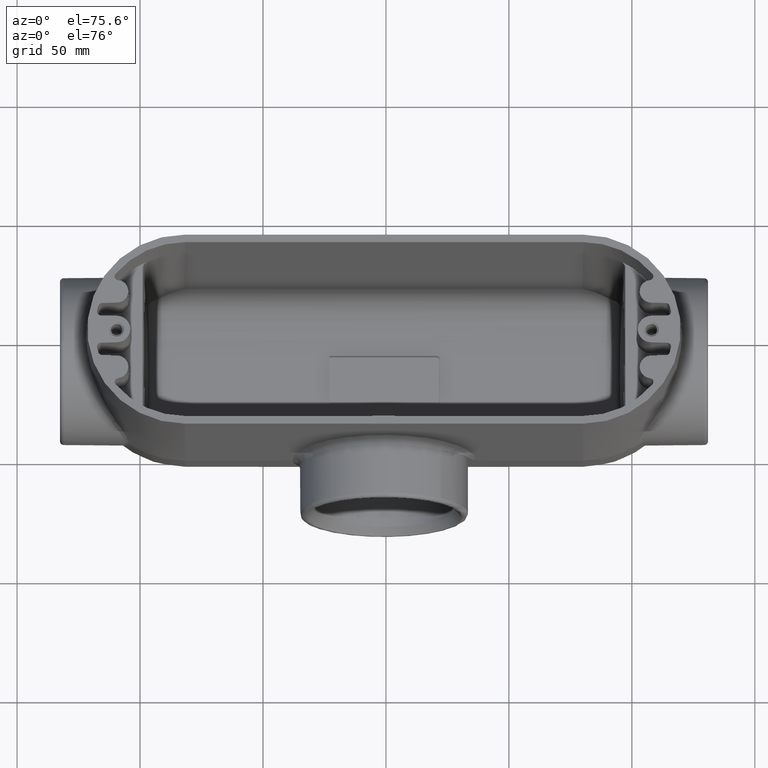
[diagram: clean part render]
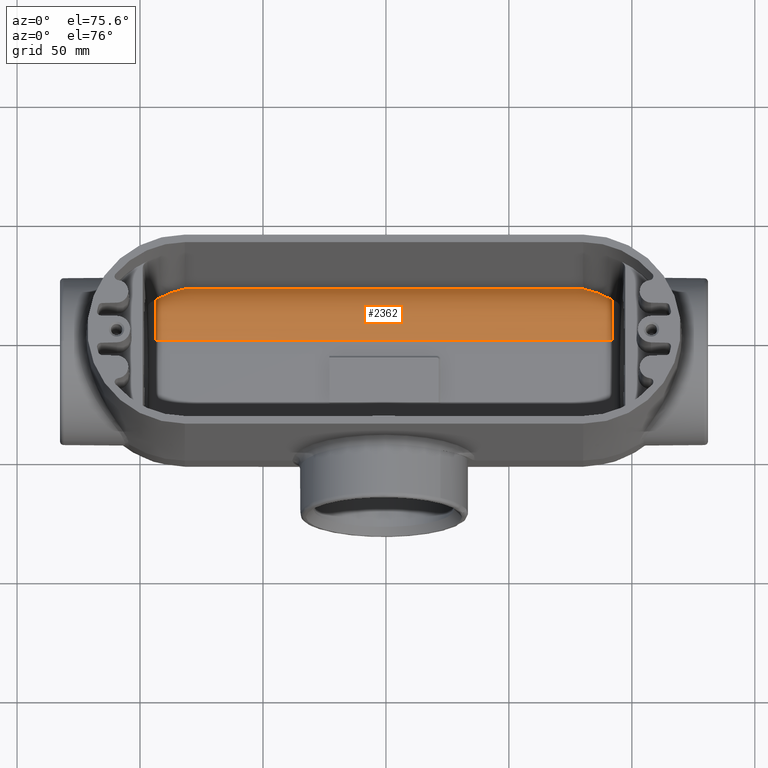
[diagram: same view with one face highlighted and labeled with its STEP entity id]
A machine part, auxiliary view. The second image highlights one B-rep face of the part: STEP entity #2362.
In plain terms, the highlighted cylindrical surface (partial cylindrical patch) has radius 17.4625 mm, axis along (-1, -0, 0).
Its self-contained STEP definition (entity closure, byte-faithful):
#65=CYLINDRICAL_SURFACE('',#2641,0.6875);
#149=ELLIPSE('',#2642,0.687780557162327,0.6875);
#150=ELLIPSE('',#2643,0.687780557162327,0.6875);
#252=FACE_OUTER_BOUND('',#416,.T.);
#416=EDGE_LOOP('',(#1951,#1952,#1953,#1954,#1955,#1956));
#532=B_SPLINE_CURVE_WITH_KNOTS('',3,(#3883,#3884,#3885,#3886,#3887,#3888,
#3889,#3890),.UNSPECIFIED.,.F.,.F.,(4,2,2,4),(11.7739502064046,12.0384001519896,
12.6063927534046,13.1743853548195),.UNSPECIFIED.);
#535=B_SPLINE_CURVE_WITH_KNOTS('',3,(#3930,#3931,#3932,#3933,#3934,#3935,
#3936,#3937),.UNSPECIFIED.,.F.,.F.,(4,2,2,4),(-1.40043514839432,-1.13598520282992,
-0.567992601414959,0.),.UNSPECIFIED.);
#616=LINE('',#3904,#740);
#651=LINE('',#6362,#775);
#740=VECTOR('',#2836,7.2974584306621);
#775=VECTOR('',#3015,6.375);
#1025=VERTEX_POINT('',#3880);
#1026=VERTEX_POINT('',#3882);
#1029=VERTEX_POINT('',#3901);
#1030=VERTEX_POINT('',#3903);
#1039=VERTEX_POINT('',#3922);
#1040=VERTEX_POINT('',#3929);
#1257=EDGE_CURVE('',#1025,#1026,#532,.F.);
#1261=EDGE_CURVE('',#1029,#1030,#616,.T.);
#1271=EDGE_CURVE('',#1039,#1040,#535,.T.);
#1377=EDGE_CURVE('',#1040,#1025,#651,.F.);
#1455=EDGE_CURVE('',#1029,#1026,#149,.F.);
#1456=EDGE_CURVE('',#1039,#1030,#150,.F.);
#1951=ORIENTED_EDGE('',*,*,#1261,.F.);
#1952=ORIENTED_EDGE('',*,*,#1455,.T.);
#1953=ORIENTED_EDGE('',*,*,#1257,.F.);
#1954=ORIENTED_EDGE('',*,*,#1377,.F.);
#1955=ORIENTED_EDGE('',*,*,#1271,.F.);
#1956=ORIENTED_EDGE('',*,*,#1456,.T.);
#2362=ADVANCED_FACE('',(#252),#65,.F.);
#2641=AXIS2_PLACEMENT_3D('',#6532,#3192,#3193);
#2642=AXIS2_PLACEMENT_3D('',#6533,#3194,#3195);
#2643=AXIS2_PLACEMENT_3D('',#6534,#3196,#3197);
#2836=DIRECTION('',(-1.,-3.07642511070619E-12,0.));
#3015=DIRECTION('',(-1.,-3.07642680136582E-12,0.));
#3192=DIRECTION('center_axis',(-1.,-3.07642508726512E-12,0.));
#3193=DIRECTION('ref_axis',(3.07642508726512E-12,-1.,0.));
#3194=DIRECTION('center_axis',(-0.999592083318719,-5.59466967209184E-13,
0.0285598838678307));
#3195=DIRECTION('ref_axis',(-0.0285598838678307,-8.81371345055609E-11,-0.999592083318719));
#3196=DIRECTION('center_axis',(0.999592083318719,5.58776728119292E-13,0.0285598838678311));
#3197=DIRECTION('ref_axis',(-0.0285598838678311,-8.81612929646199E-11,0.999592083318719));
#3880=CARTESIAN_POINT('',(5.12499999999586,0.688745111954351,-2.64899340398297));
#3882=CARTESIAN_POINT('',(5.59577480585341,0.59137631374883,-2.97840563202722));
#3883=CARTESIAN_POINT('Ctrl Pts',(5.59577480585341,0.59137631374883,-2.97840563202722));
#3884=CARTESIAN_POINT('Ctrl Pts',(5.56636069917954,0.603212497259505,-2.95865511449834));
#3885=CARTESIAN_POINT('Ctrl Pts',(5.53661432913841,0.613981000342555,-2.93843129994536));
#3886=CARTESIAN_POINT('Ctrl Pts',(5.44244663123978,0.644419652165477,-2.87379286189948));
#3887=CARTESIAN_POINT('Ctrl Pts',(5.37736870834963,0.66009278230426,-2.82822600803482));
#3888=CARTESIAN_POINT('Ctrl Pts',(5.24896788444023,0.681499859397332,-2.73748321237361));
#3889=CARTESIAN_POINT('Ctrl Pts',(5.18564263370037,0.687232453441022,-2.69231027630656));
#3890=CARTESIAN_POINT('Ctrl Pts',(5.12499999999586,0.688745111954351,-2.64899340398297));
#3901=CARTESIAN_POINT('',(5.58622921533105,0.00166391838014153,-3.3125));
#3903=CARTESIAN_POINT('',(-1.71122921533105,0.00166391837283523,-3.3125));
#3904=CARTESIAN_POINT('',(5.58622921533105,0.00166391838014153,-3.3125));
#3922=CARTESIAN_POINT('',(-1.7207748304436,0.591376301416257,-2.97840558802318));
#3929=CARTESIAN_POINT('',(-1.25000000000414,0.68874511193474,-2.64899340398297));
#3930=CARTESIAN_POINT('Ctrl Pts',(-1.72077480585423,0.591376313729085,-2.97840563202261));
#3931=CARTESIAN_POINT('Ctrl Pts',(-1.69136069918267,0.603212497238855,-2.95865511449519));
#3932=CARTESIAN_POINT('Ctrl Pts',(-1.6616143291439,0.613981000321164,-2.93843129994376));
#3933=CARTESIAN_POINT('Ctrl Pts',(-1.56744663124779,0.644419652143913,-2.87379286189948));
#3934=CARTESIAN_POINT('Ctrl Pts',(-1.50236870835773,0.660092782283096,-2.82822600803482));
#3935=CARTESIAN_POINT('Ctrl Pts',(-1.37396788444847,0.681499859376958,-2.7374832123736));
#3936=CARTESIAN_POINT('Ctrl Pts',(-1.31064263370864,0.687232453421036,-2.69231027630656));
#3937=CARTESIAN_POINT('Ctrl Pts',(-1.25000000000414,0.688745111934739,-2.64899340398297));
#6362=CARTESIAN_POINT('',(5.12499999999586,0.688745111954351,-2.64899340398297));
#6532=CARTESIAN_POINT('Origin',(-1.25000000000202,0.00166391835911039,-2.625));
#6533=CARTESIAN_POINT('Origin',(5.60587214817016,0.00166391838020196,-2.625));
#6534=CARTESIAN_POINT('Origin',(-1.73087214817016,0.00166391835763102,-2.625));